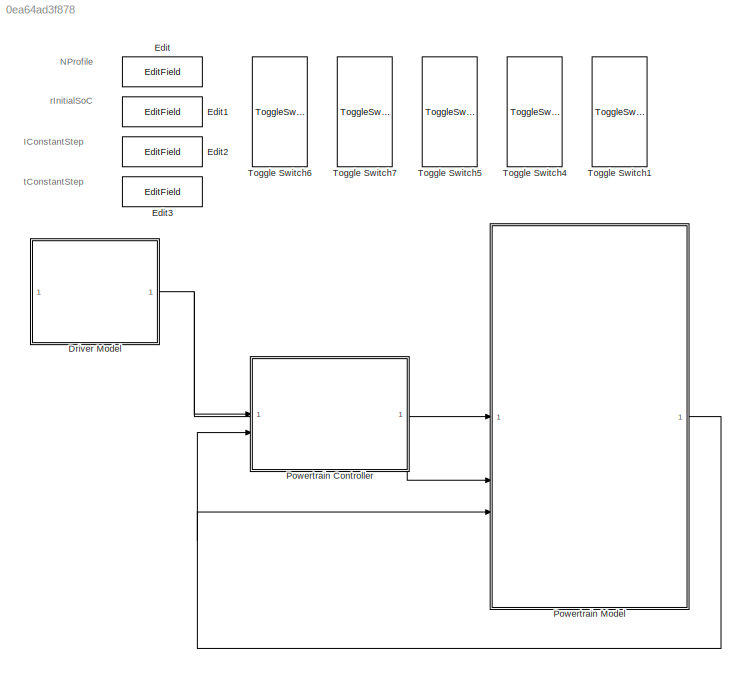
MODEL slx_0ea64ad3f878
KIND model
CONFIG AbsTol = auto
CONFIG EnableMultiTasking = off
CONFIG FixedStep = tSim
CONFIG MaxStep = auto
CONFIG MinStep = auto
CONFIG RelTol = 1e-3
CONFIG SampleTimeConstraint = Unconstrained
CONFIG SolverName = FixedStepDiscrete
CONFIG StartTime = 0.0
CONFIG StopTime = Inf
BLOCK [SubSystem] Driver Model
  PermitHierarchicalResolution = None
  ReferencedSubsystem = Driver
BLOCK [EditField] Edit
  Alignment = Center
  LabelPosition = Hide
  ShowInitialText = on
BLOCK [EditField] Edit1
  Alignment = Center
  LabelPosition = Hide
  ShowInitialText = on
BLOCK [EditField] Edit2
  Alignment = Center
  LabelPosition = Hide
  ShowInitialText = on
BLOCK [EditField] Edit3
  Alignment = Center
  LabelPosition = Hide
  ShowInitialText = on
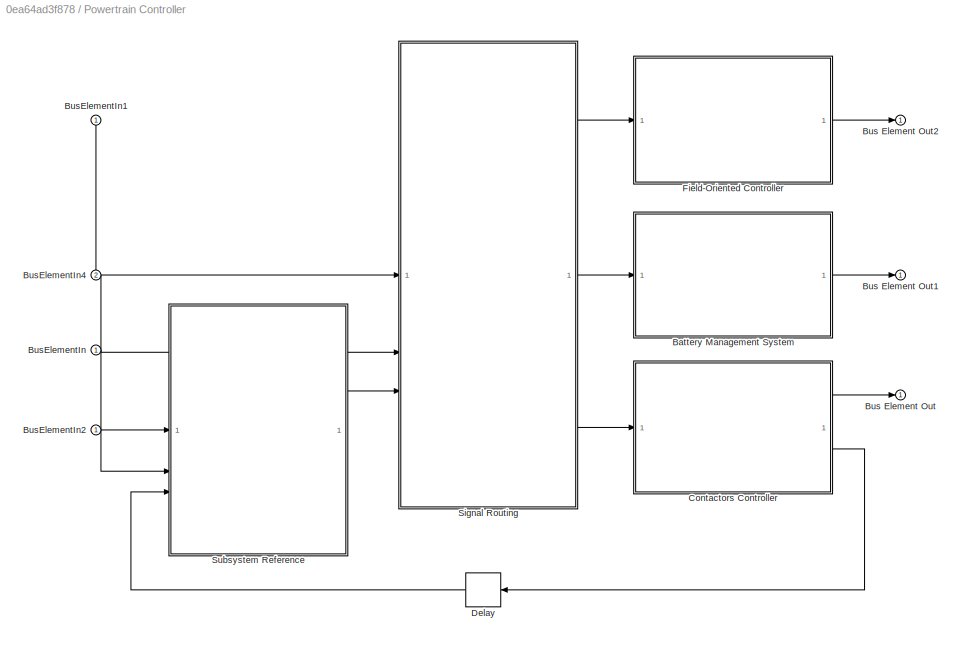
BLOCK [SubSystem] Powertrain Controller
BLOCK [SubSystem] Powertrain Controller/Battery Management System
  PermitHierarchicalResolution = None
  ReferencedSubsystem = BMS
BLOCK [Outport] Powertrain Controller/Bus Element Out
BLOCK [Outport] Powertrain Controller/Bus Element Out1
BLOCK [Outport] Powertrain Controller/Bus Element Out2
BLOCK [Inport] Powertrain Controller/BusElementIn
BLOCK [Inport] Powertrain Controller/BusElementIn1
BLOCK [Inport] Powertrain Controller/BusElementIn2
BLOCK [Inport] Powertrain Controller/BusElementIn4
  Port = 2
BLOCK [SubSystem] Powertrain Controller/Contactors Controller
  PermitHierarchicalResolution = None
  ReferencedSubsystem = ContactorsController
BLOCK [Delay] Powertrain Controller/Delay
  DelayLength = 1
  InputPortMap = u0
  NameLocation = top
BLOCK [SubSystem] Powertrain Controller/Field-Oriented Controller
  PermitHierarchicalResolution = None
  ReferencedSubsystem = FOC
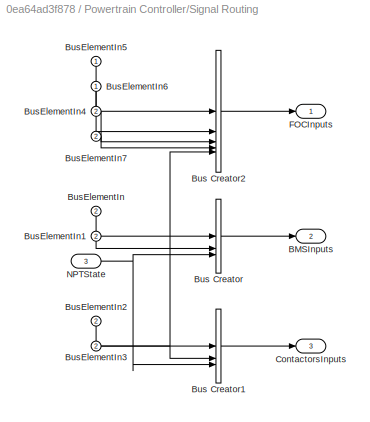
BLOCK [SubSystem] Powertrain Controller/Signal Routing
BLOCK [Outport] Powertrain Controller/Signal Routing/BMSInputs
  Port = 2
BLOCK [BusCreator] Powertrain Controller/Signal Routing/Bus Creator
  DisplayOption = bar
  InheritFromInputs = off
  Inputs = 3
  OutDataTypeStr = Bus: BMSInputs_BUS
BLOCK [BusCreator] Powertrain Controller/Signal Routing/Bus Creator1
  DisplayOption = bar
  InheritFromInputs = off
  Inputs = 3
  OutDataTypeStr = Bus: ContactorsInputs_BUS
BLOCK [BusCreator] Powertrain Controller/Signal Routing/Bus Creator2
  DisplayOption = bar
  InheritFromInputs = off
  Inputs = 5
  OutDataTypeStr = Bus: FOCInputs_BUS
BLOCK [Inport] Powertrain Controller/Signal Routing/BusElementIn
  Port = 2
BLOCK [Inport] Powertrain Controller/Signal Routing/BusElementIn1
  Port = 2
BLOCK [Inport] Powertrain Controller/Signal Routing/BusElementIn2
  Port = 2
BLOCK [Inport] Powertrain Controller/Signal Routing/BusElementIn3
  Port = 2
BLOCK [Inport] Powertrain Controller/Signal Routing/BusElementIn4
  Port = 2
BLOCK [Inport] Powertrain Controller/Signal Routing/BusElementIn5
BLOCK [Inport] Powertrain Controller/Signal Routing/BusElementIn6
BLOCK [Inport] Powertrain Controller/Signal Routing/BusElementIn7
  Port = 2
BLOCK [Outport] Powertrain Controller/Signal Routing/ContactorsInputs
  Port = 3
BLOCK [Outport] Powertrain Controller/Signal Routing/FOCInputs
BLOCK [Inport] Powertrain Controller/Signal Routing/NPTState
  Port = 3
BLOCK [SubSystem] Powertrain Controller/Subsystem Reference
  PermitHierarchicalResolution = None
  ReferencedSubsystem = PowertrainState
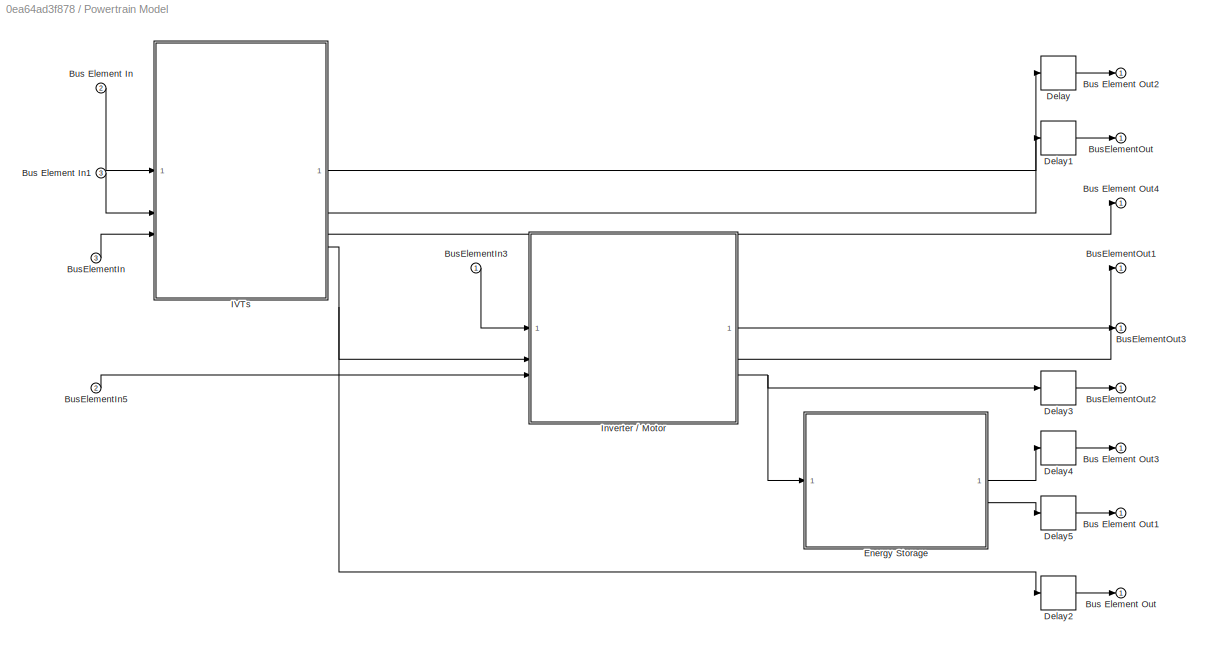
BLOCK [SubSystem] Powertrain Model
BLOCK [Inport] Powertrain Model/Bus Element In
  Port = 2
BLOCK [Inport] Powertrain Model/Bus Element In1
  Port = 3
BLOCK [Outport] Powertrain Model/Bus Element Out
BLOCK [Outport] Powertrain Model/Bus Element Out1
BLOCK [Outport] Powertrain Model/Bus Element Out2
BLOCK [Outport] Powertrain Model/Bus Element Out3
BLOCK [Outport] Powertrain Model/Bus Element Out4
BLOCK [Inport] Powertrain Model/BusElementIn
  Port = 3
BLOCK [Inport] Powertrain Model/BusElementIn3
BLOCK [Inport] Powertrain Model/BusElementIn5
  Port = 2
BLOCK [Outport] Powertrain Model/BusElementOut
BLOCK [Outport] Powertrain Model/BusElementOut1
BLOCK [Outport] Powertrain Model/BusElementOut2
BLOCK [Outport] Powertrain Model/BusElementOut3
BLOCK [Delay] Powertrain Model/Delay
  DelayLength = 1
  InputPortMap = u0
BLOCK [Delay] Powertrain Model/Delay1
  DelayLength = 1
  InputPortMap = u0
BLOCK [Delay] Powertrain Model/Delay2
  DelayLength = 1
  InputPortMap = u0
BLOCK [Delay] Powertrain Model/Delay3
  DelayLength = 1
  InputPortMap = u0
BLOCK [Delay] Powertrain Model/Delay4
  DelayLength = 1
  InputPortMap = u0
BLOCK [Delay] Powertrain Model/Delay5
  DelayLength = 1
  InputPortMap = u0
BLOCK [SubSystem] Powertrain Model/Energy Storage
  PermitHierarchicalResolution = None
  ReferencedSubsystem = EnergyStorage
BLOCK [SubSystem] Powertrain Model/IVTs
  PermitHierarchicalResolution = None
  ReferencedSubsystem = IVTs
BLOCK [SubSystem] Powertrain Model/Inverter // Motor
  ReferencedSubsystem = InverterMotor
BLOCK [ToggleSwitchBlock] Toggle Switch1
BLOCK [ToggleSwitchBlock] Toggle Switch4
BLOCK [ToggleSwitchBlock] Toggle Switch5
BLOCK [ToggleSwitchBlock] Toggle Switch6
BLOCK [ToggleSwitchBlock] Toggle Switch7
ANNOTATION (root): IConstantStep
ANNOTATION (root): NProfile
ANNOTATION (root): rInitialSoC
ANNOTATION (root): tConstantStep
NET Driver Model:1 -> Powertrain Controller:1, Powertrain Model:1
LINE Powertrain Controller/Battery Management System:1 -> Powertrain Controller/Bus Element Out1:1
LINE Powertrain Controller/BusElementIn1:1 -> Powertrain Controller/Signal Routing:1
LINE Powertrain Controller/BusElementIn2:1 -> Powertrain Controller/Subsystem Reference:2
LINE Powertrain Controller/BusElementIn4:1 -> Powertrain Controller/Signal Routing:2
LINE Powertrain Controller/BusElementIn:1 -> Powertrain Controller/Subsystem Reference:1
LINE Powertrain Controller/Contactors Controller:1 -> Powertrain Controller/Bus Element Out:1
LINE Powertrain Controller/Contactors Controller:2 -> Powertrain Controller/Delay:1
LINE Powertrain Controller/Delay:1 -> Powertrain Controller/Subsystem Reference:3
LINE Powertrain Controller/Field-Oriented Controller:1 -> Powertrain Controller/Bus Element Out2:1
LINE Powertrain Controller/Signal Routing/Bus Creator1:1 -> Powertrain Controller/Signal Routing/ContactorsInputs:1
LINE Powertrain Controller/Signal Routing/Bus Creator2:1 -> Powertrain Controller/Signal Routing/FOCInputs:1
LINE Powertrain Controller/Signal Routing/Bus Creator:1 -> Powertrain Controller/Signal Routing/BMSInputs:1
LINE Powertrain Controller/Signal Routing/BusElementIn1:1 -> Powertrain Controller/Signal Routing/Bus Creator:2
LINE Powertrain Controller/Signal Routing/BusElementIn2:1 -> Powertrain Controller/Signal Routing/Bus Creator1:1
NET Powertrain Controller/Signal Routing/BusElementIn3:1 -> Powertrain Controller/Signal Routing/Bus Creator1:2, Powertrain Controller/Signal Routing/Bus Creator2:5
LINE Powertrain Controller/Signal Routing/BusElementIn4:1 -> Powertrain Controller/Signal Routing/Bus Creator2:3
LINE Powertrain Controller/Signal Routing/BusElementIn5:1 -> Powertrain Controller/Signal Routing/Bus Creator2:1
LINE Powertrain Controller/Signal Routing/BusElementIn6:1 -> Powertrain Controller/Signal Routing/Bus Creator2:2
LINE Powertrain Controller/Signal Routing/BusElementIn7:1 -> Powertrain Controller/Signal Routing/Bus Creator2:4
LINE Powertrain Controller/Signal Routing/BusElementIn:1 -> Powertrain Controller/Signal Routing/Bus Creator:1
NET Powertrain Controller/Signal Routing/NPTState:1 -> Powertrain Controller/Signal Routing/Bus Creator1:3, Powertrain Controller/Signal Routing/Bus Creator:3
LINE Powertrain Controller/Signal Routing:1 -> Powertrain Controller/Field-Oriented Controller:1
LINE Powertrain Controller/Signal Routing:2 -> Powertrain Controller/Battery Management System:1
LINE Powertrain Controller/Signal Routing:3 -> Powertrain Controller/Contactors Controller:1
LINE Powertrain Controller/Subsystem Reference:1 -> Powertrain Controller/Signal Routing:3
LINE Powertrain Controller:1 -> Powertrain Model:2
LINE Powertrain Model/Bus Element In1:1 -> Powertrain Model/IVTs:2
LINE Powertrain Model/Bus Element In:1 -> Powertrain Model/IVTs:1
LINE Powertrain Model/BusElementIn3:1 -> Powertrain Model/Inverter // Motor:1
LINE Powertrain Model/BusElementIn5:1 -> Powertrain Model/Inverter // Motor:3
LINE Powertrain Model/BusElementIn:1 -> Powertrain Model/IVTs:3
LINE Powertrain Model/Delay1:1 -> Powertrain Model/BusElementOut:1
LINE Powertrain Model/Delay2:1 -> Powertrain Model/Bus Element Out:1
LINE Powertrain Model/Delay3:1 -> Powertrain Model/BusElementOut2:1
LINE Powertrain Model/Delay4:1 -> Powertrain Model/Bus Element Out3:1
LINE Powertrain Model/Delay5:1 -> Powertrain Model/Bus Element Out1:1
LINE Powertrain Model/Delay:1 -> Powertrain Model/Bus Element Out2:1
LINE Powertrain Model/Energy Storage:1 -> Powertrain Model/Delay4:1
LINE Powertrain Model/Energy Storage:2 -> Powertrain Model/Delay5:1
LINE Powertrain Model/IVTs:1 -> Powertrain Model/Delay:1
LINE Powertrain Model/IVTs:2 -> Powertrain Model/Delay1:1
LINE Powertrain Model/IVTs:3 -> Powertrain Model/Bus Element Out4:1
NET Powertrain Model/IVTs:4 -> Powertrain Model/Delay2:1, Powertrain Model/Inverter // Motor:2
LINE Powertrain Model/Inverter // Motor:1 -> Powertrain Model/BusElementOut1:1
LINE Powertrain Model/Inverter // Motor:2 -> Powertrain Model/BusElementOut3:1
NET Powertrain Model/Inverter // Motor:3 -> Powertrain Model/Delay3:1, Powertrain Model/Energy Storage:1
NET Powertrain Model:1 -> Powertrain Controller:2, Powertrain Model:3
note: NET lines group one-source signal fan-out (src -> all destinations, sorted); 1:1 wires keep LINE
